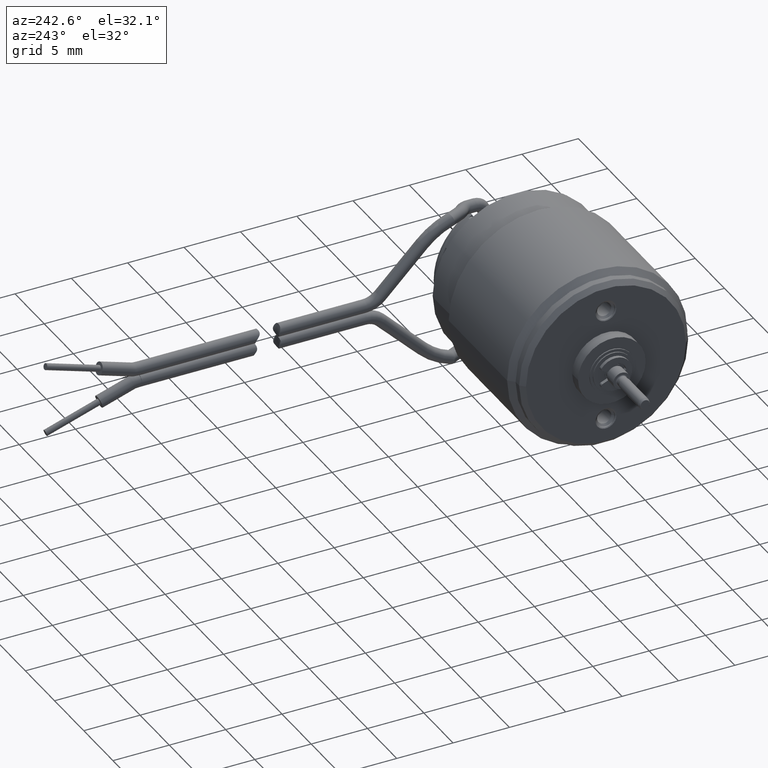
[diagram: clean part render]
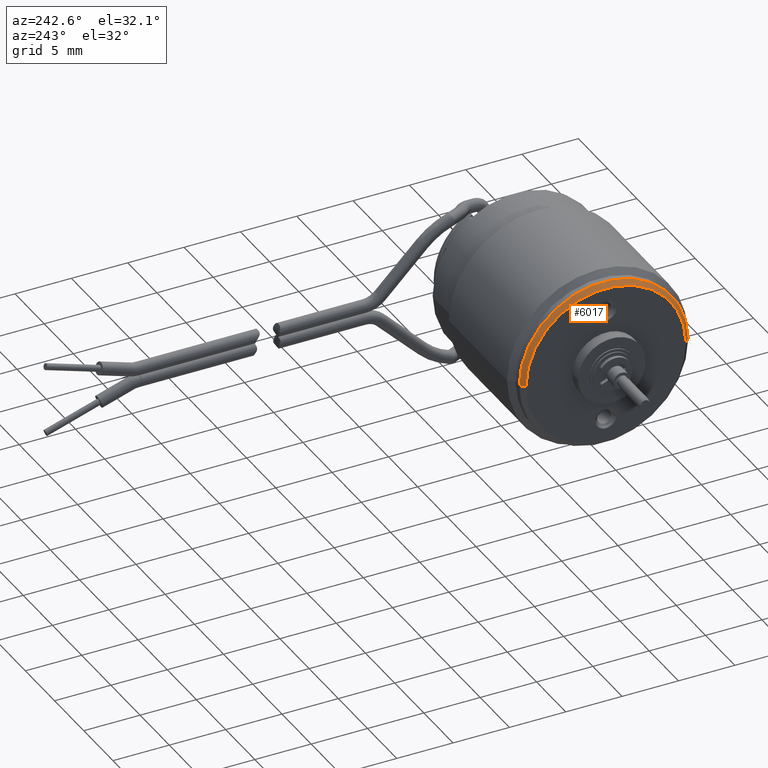
[diagram: same view with one face highlighted and labeled with its STEP entity id]
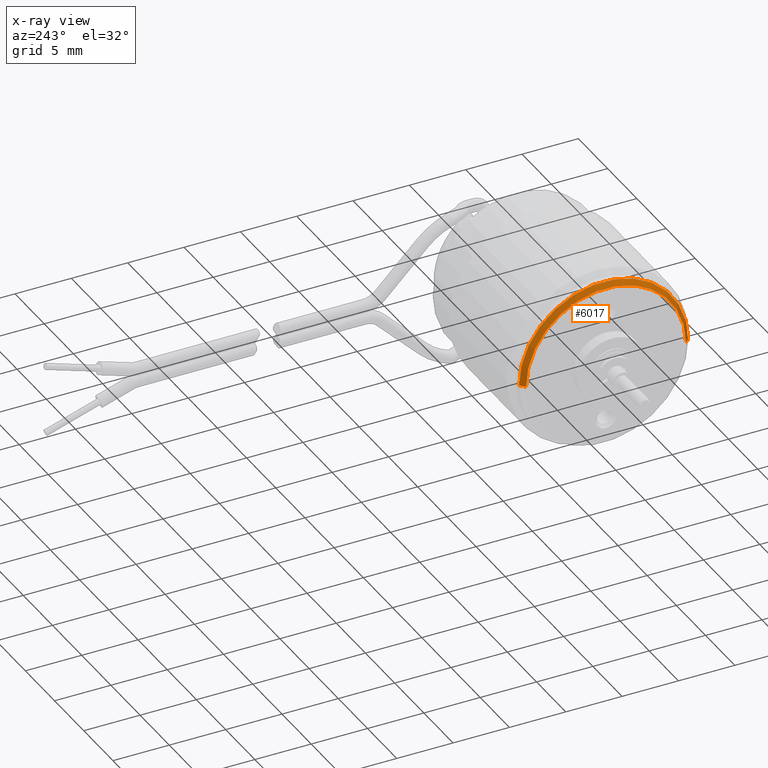
[diagram: x-ray of the same camera — body ghosted, the highlighted face saturated]
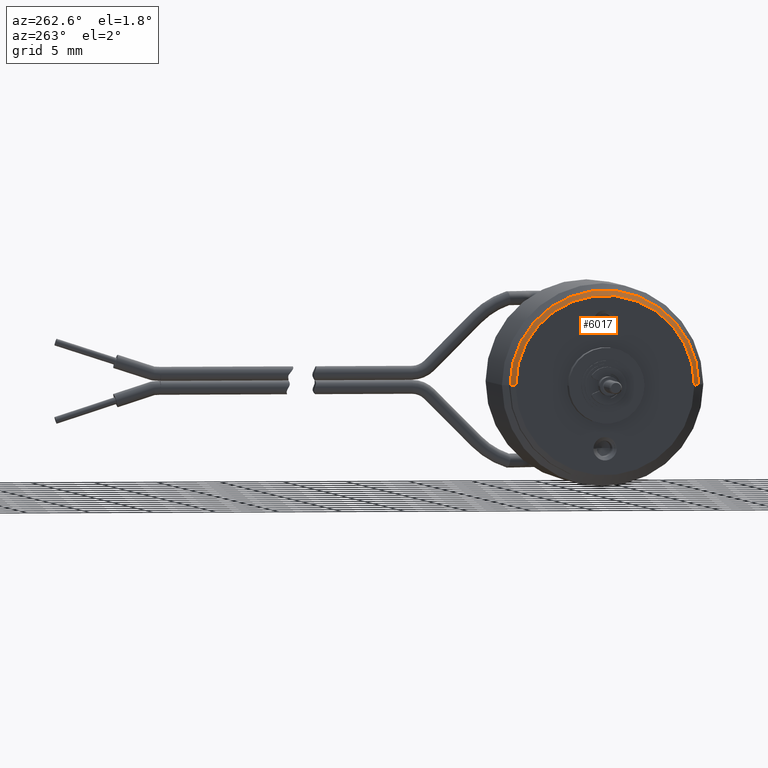
[diagram: same view with one face highlighted and labeled with its STEP entity id]
A machine part, auxiliary view. The second image highlights one B-rep face of the part: STEP entity #6017.
The next image is the same camera in x-ray: the body ghosted, the highlighted face saturated — about 0% of this face is hidden behind the body in this view.
A second angle (auxiliary view) of the same face is appended — the face is thin or edge-on in the first view.
In plain terms, the highlighted conical surface has half-angle 45 deg.
Its self-contained STEP definition (entity closure, byte-faithful):
#1603=DIRECTION('',(7.071067811865E-1,7.071067811865E-1,1.148660753675E-9));
#1604=VECTOR('',#1603,5.656854250364E-1);
#1605=CARTESIAN_POINT('',(6.699999999703E0,7.099999999703E0,
-3.127762802423E-9));
#1606=LINE('',#1605,#1604);
#1607=CARTESIAN_POINT('',(6.7E0,1.644997995676E-14,0.E0));
#1608=DIRECTION('',(-1.E0,0.E0,0.E0));
#1609=DIRECTION('',(0.E0,-1.E0,0.E0));
#1610=AXIS2_PLACEMENT_3D('',#1607,#1608,#1609);
#2299=DIRECTION('',(7.071067811865E-1,-7.071067811866E-1,-1.148657854200E-9));
#2300=VECTOR('',#2299,5.656854250364E-1);
#2301=CARTESIAN_POINT('',(6.699999999703E0,-7.099999999703E0,
3.127761611615E-9));
#2302=LINE('',#2301,#2300);
#2303=CARTESIAN_POINT('',(7.1E0,0.E0,0.E0));
#2304=DIRECTION('',(-1.E0,0.E0,0.E0));
#2305=DIRECTION('',(0.E0,-1.E0,0.E0));
#2306=AXIS2_PLACEMENT_3D('',#2303,#2304,#2305);
#2965=CARTESIAN_POINT('',(6.7E0,-7.1E0,0.E0));
#2966=CARTESIAN_POINT('',(6.7E0,7.1E0,0.E0));
#2967=VERTEX_POINT('',#2965);
#2968=VERTEX_POINT('',#2966);
#2969=CARTESIAN_POINT('',(7.1E0,-7.5E0,0.E0));
#2970=CARTESIAN_POINT('',(7.1E0,7.5E0,0.E0));
#2971=VERTEX_POINT('',#2969);
#2972=VERTEX_POINT('',#2970);
#6005=CARTESIAN_POINT('',(6.899999999714E0,1.642548702081E-14,0.E0));
#6006=DIRECTION('',(1.E0,0.E0,0.E0));
#6007=DIRECTION('',(0.E0,0.E0,-1.E0));
#6008=AXIS2_PLACEMENT_3D('',#6005,#6006,#6007);
#6009=CONICAL_SURFACE('',#6008,7.299999999714E0,4.5E1);
#6010=ORIENTED_EDGE('',*,*,#5079,.T.);
#6011=ORIENTED_EDGE('',*,*,#5069,.T.);
#6013=ORIENTED_EDGE('',*,*,#6012,.F.);
#6014=ORIENTED_EDGE('',*,*,#5066,.F.);
#6015=EDGE_LOOP('',(#6010,#6011,#6013,#6014));
#6016=FACE_OUTER_BOUND('',#6015,.F.);
#6017=ADVANCED_FACE('',(#6016),#6009,.T.);
#1611=CIRCLE('',#1610,7.1E0);
#2307=CIRCLE('',#2306,7.5E0);
#5066=EDGE_CURVE('',#2967,#2971,#2302,.T.);
#5069=EDGE_CURVE('',#2968,#2972,#1606,.T.);
#5079=EDGE_CURVE('',#2967,#2968,#1611,.T.);
#6012=EDGE_CURVE('',#2971,#2972,#2307,.T.);